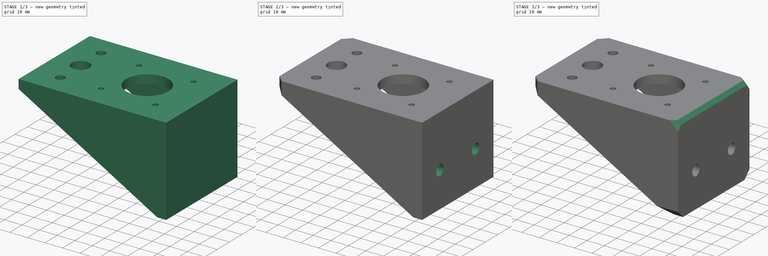
[diagram: build sequence overview — one tinted view per stage of 3, left to right]
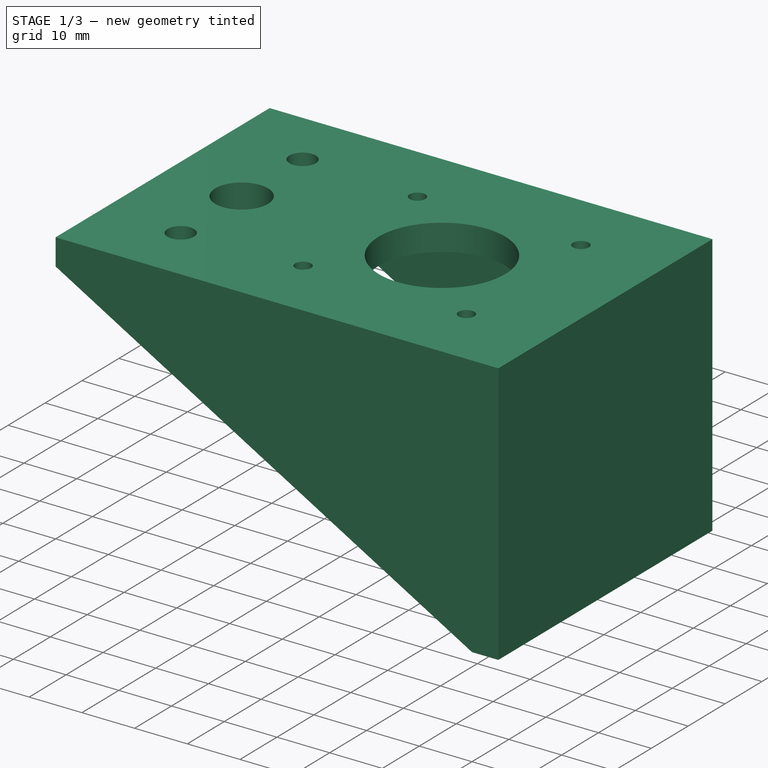
[diagram: stage 1 of 3 — iso view after this stage's code; geometry added in this stage tinted green]
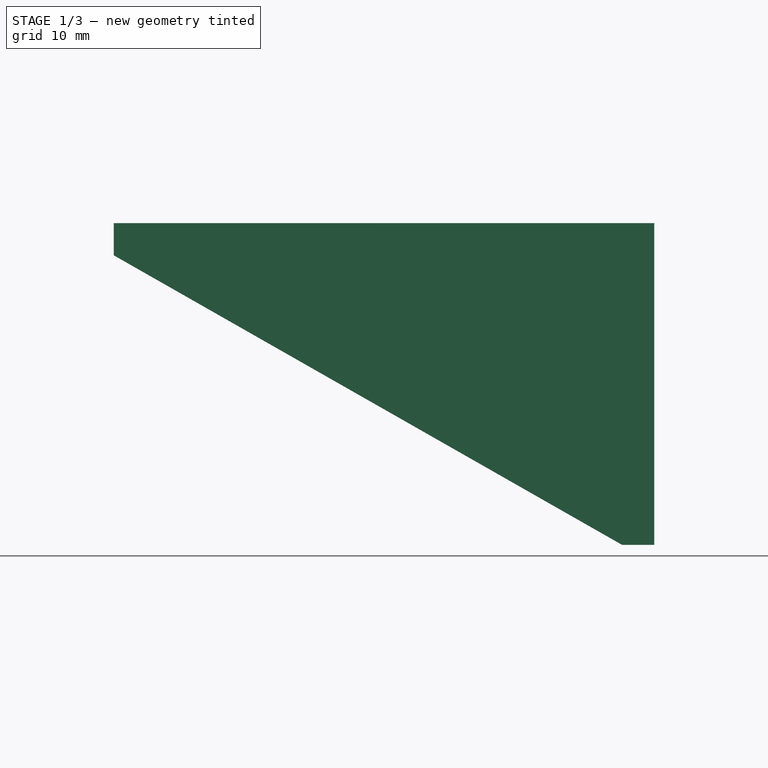
[diagram: stage 1 of 3 — front view after this stage's code; geometry added in this stage tinted green]
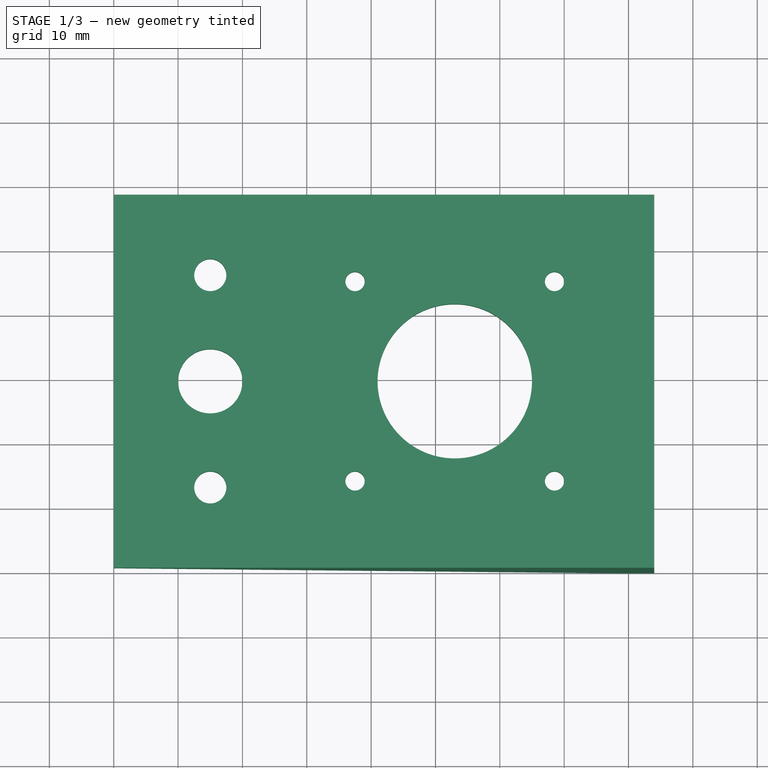
[diagram: stage 1 of 3 — top view after this stage's code; geometry added in this stage tinted green]
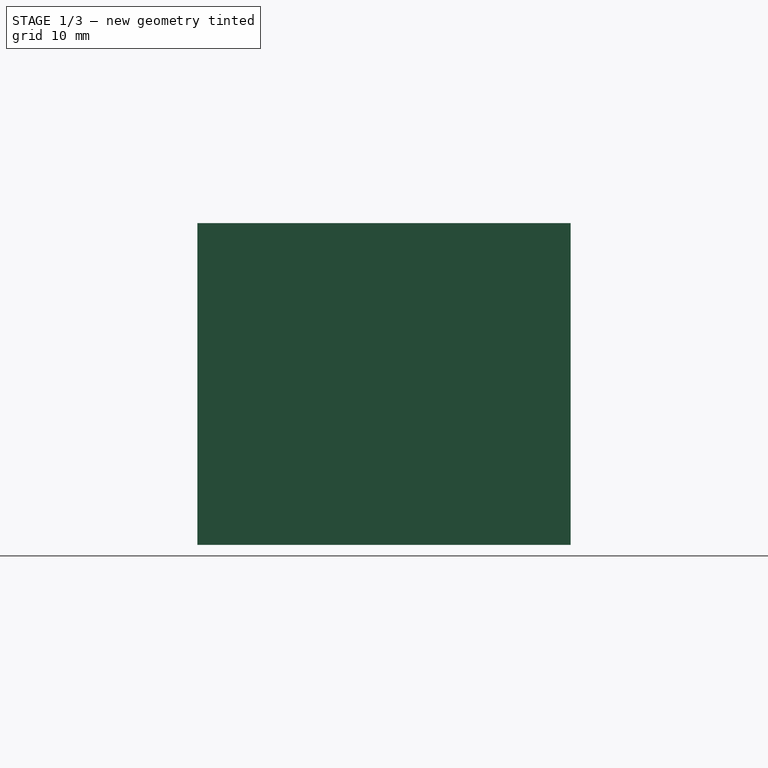
[diagram: stage 1 of 3 — right view after this stage's code; geometry added in this stage tinted green]
FCSTD DOCUMENT  (FreeCAD 0.18R14555 (Git shallow))
Label: bracket
License: All rights reserved
LicenseURL: http://en.wikipedia.org/wiki/All_rights_reserved
objects: Sketcher::SketchObject×4, PartDesign::Chamfer×4, PartDesign::Pocket×3, PartDesign::Pad×1, PartDesign::Body×1
note: 17 computed .brp shape members not serialized (recipe doc carries the construction recipe); baked Part::Feature solids carry a one-line shape summary decoded from their .brp

FEATURE [Sketcher::SketchObject] Sketch
  MapMode = 5
  Support = -> [XY_Plane]
  sketch-geometry (32):
    g0: LineSegment [constr] StartX=32 StartY=50 StartZ=0 EndX=74 EndY=50 EndZ=0
    g1: LineSegment [constr] StartX=74 StartY=50 StartZ=0 EndX=74 EndY=8 EndZ=0
    g2: LineSegment [constr] StartX=74 StartY=8 StartZ=0 EndX=32 EndY=8 EndZ=0
    g3: LineSegment [constr] StartX=32 StartY=8 StartZ=0 EndX=32 EndY=50 EndZ=0
    g4: LineSegment [constr] StartX=5 StartY=50.5 StartZ=0 EndX=25 EndY=50.5 EndZ=0
    g5: LineSegment [constr] StartX=25 StartY=50.5 StartZ=0 EndX=25 EndY=7.5 EndZ=0
    g6: LineSegment [constr] StartX=25 StartY=7.5 StartZ=0 EndX=5 EndY=7.5 EndZ=0
    g7: LineSegment [constr] StartX=5 StartY=7.5 StartZ=0 EndX=5 EndY=50.5 EndZ=0
    g8: LineSegment [constr] StartX=32 StartY=50 StartZ=0 EndX=74 EndY=8 EndZ=0
    g9: LineSegment [constr] StartX=32 StartY=8 StartZ=0 EndX=74 EndY=50 EndZ=0
    g10: LineSegment [constr] StartX=37.5 StartY=13.5 StartZ=0 EndX=37.5 EndY=44.5 EndZ=0
    g11: LineSegment [constr] StartX=37.5 StartY=44.5 StartZ=0 EndX=68.5 EndY=44.5 EndZ=0
    g12: LineSegment [constr] StartX=68.5 StartY=44.5 StartZ=0 EndX=68.5 EndY=13.5 EndZ=0
    g13: LineSegment [constr] StartX=68.5 StartY=13.5 StartZ=0 EndX=37.5 EndY=13.5 EndZ=0
    g14: Circle CenterX=37.5 CenterY=44.5 CenterZ=0 NormalX=0 NormalY=0 NormalZ=1 AngleXU=0 Radius=1.5
    g15: Circle CenterX=68.5 CenterY=44.5 CenterZ=0 NormalX=0 NormalY=0 NormalZ=1 AngleXU=0 Radius=1.5
    g16: Circle CenterX=68.5 CenterY=13.5 CenterZ=0 NormalX=0 NormalY=0 NormalZ=1 AngleXU=0 Radius=1.5
    g17: Circle CenterX=37.5 CenterY=13.5 CenterZ=0 NormalX=0 NormalY=0 NormalZ=1 AngleXU=0 Radius=1.5
    g18: Circle CenterX=53 CenterY=29 CenterZ=0 NormalX=0 NormalY=0 NormalZ=1 AngleXU=0 Radius=12
    g19: Circle CenterX=15 CenterY=45.5 CenterZ=0 NormalX=0 NormalY=0 NormalZ=1 AngleXU=0 Radius=2.5
    g20: Circle CenterX=15 CenterY=12.5 CenterZ=0 NormalX=0 NormalY=0 NormalZ=1 AngleXU=0 Radius=2.5
    g21: LineSegment [constr] StartX=5 StartY=7.5 StartZ=0 EndX=15 EndY=12.5 EndZ=0
    g22: LineSegment [constr] StartX=15 StartY=12.5 StartZ=0 EndX=25 EndY=7.5 EndZ=0
    g23: LineSegment [constr] StartX=15 StartY=45.5 StartZ=0 EndX=5 EndY=50.5 EndZ=0
    g24: LineSegment [constr] StartX=15 StartY=12.5 StartZ=0 EndX=15 EndY=29 EndZ=0
    g25: LineSegment [constr] StartX=15 StartY=29 StartZ=0 EndX=15 EndY=45.5 EndZ=0
    g26: Circle CenterX=15 CenterY=29 CenterZ=0 NormalX=0 NormalY=0 NormalZ=1 AngleXU=0 Radius=5
    g27: LineSegment [constr] StartX=15 StartY=29 StartZ=0 EndX=53 EndY=29 EndZ=0
    g28: LineSegment StartX=0 StartY=58 StartZ=0 EndX=84 EndY=58 EndZ=0
    g29: LineSegment StartX=84 StartY=58 StartZ=0 EndX=84 EndY=0 EndZ=0
    g30: LineSegment StartX=84 StartY=0 StartZ=0 EndX=0 EndY=0 EndZ=0
    g31: LineSegment StartX=0 StartY=0 StartZ=0 EndX=0 EndY=58 EndZ=0
  constraints (83):
    c: Coincident(g0,g1)
    c: Coincident(g1,g2)
    c: Coincident(g2,g3)
    c: Coincident(g3,g0)
    c: Horizontal(g0)
    c: Horizontal(g2)
    c: Vertical(g1)
    c: Vertical(g3)
    c: Coincident(g4,g5)
    c: Coincident(g5,g6)
    c: Coincident(g6,g7)
    c: Coincident(g7,g4)
    c: Horizontal(g4)
    c: Horizontal(g6)
    c: Vertical(g5)
    c: Vertical(g7)
    c: Equal(g3,g0)
    c: DistanceX(g0,g0) = 42
    c: Coincident(g8,g0)
    c: Coincident(g8,g1)
    c: Coincident(g9,g2)
    c: Coincident(g9,g0)
    c: PointOnObject(g10,g9)
    c: PointOnObject(g10,g8)
    c: Vertical(g10)
    c: Coincident(g11,g10)
    c: PointOnObject(g11,g9)
    c: Horizontal(g11)
    c: Coincident(g12,g11)
    c: PointOnObject(g12,g8)
    c: Vertical(g12)
    c: Coincident(g13,g12)
    c: Coincident(g13,g10)
    c: DistanceX(g11,g11) = 31
    c: Coincident(g14,g10)
    c: Coincident(g15,g11)
    c: Coincident(g16,g12)
    c: Coincident(g17,g10)
    c: Equal(g17,g14)
    c: Equal(g14,g15)
    c: Equal(g15,g16)
    c: Radius(g17) = 1.5
    c: PointOnObject(g18,g8)
    c: PointOnObject(g18,g9)
    c: Radius(g18) = 12
    c: Coincident(g21,g6)
    c: Coincident(g21,g20)
    c: Coincident(g22,g20)
    c: Coincident(g22,g5)
    c: Coincident(g23,g19)
    c: Coincident(g23,g4)
    c: Equal(g23,g21)
    c: Equal(g21,g22)
    c: Equal(g19,g20)
    c: Radius(g19) = 2.5
    c: DistanceY(g20,g19) = 33
    c: DistanceY(g6,g4) = 43
    c: DistanceX(g4,g4) = 20
    c: Coincident(g24,g20)
    c: Vertical(g24)
    c: Coincident(g25,g24)
    c: Coincident(g25,g19)
    c: Vertical(g25)
    c: Equal(g24,g25)
    c: Coincident(g26,g24)
    c: Radius(g26) = 5
    c: Coincident(g27,g26)
    c: Coincident(g27,g18)
    c: Horizontal(g27)
    c: DistanceX(g27,g27) = 38
    c: Coincident(g28,g29)
    c: Coincident(g29,g30)
    c: Coincident(g30,g31)
    c: Coincident(g31,g28)
    c: Horizontal(g28)
    c: Horizontal(g30)
    c: Vertical(g29)
    c: Vertical(g31)
    c: DistanceX(g18,g29) = 31
    c: DistanceY(g30,g6) = 7.5
    c: DistanceY(g4,g28) = 7.5
    c: DistanceX(g28,g4) = 5
    c: Coincident(g30,g-1)
FEATURE [PartDesign::Pad] Pad
  Length = 50
  Length2 = 100
  Profile = -> Sketch
  Type = 0
FEATURE [Sketcher::SketchObject] Sketch001
  ExternalGeometry = -> [Pad]
  MapMode = 5
  Placement = pos=(0,0,0) rot=(1,0,0;3.14159rad)
  Support = -> [Pad]
  sketch-geometry (6):
    g0: LineSegment StartX=0 StartY=-5 StartZ=0 EndX=79 EndY=-5 EndZ=0
    g1: LineSegment StartX=79 StartY=-5 StartZ=0 EndX=79 EndY=-53 EndZ=0
    g2: LineSegment StartX=79 StartY=-53 StartZ=0 EndX=0 EndY=-53 EndZ=0
    g3: LineSegment StartX=0 StartY=-53 StartZ=0 EndX=0 EndY=-5 EndZ=0
    g4: LineSegment [constr] StartX=84 StartY=-58 StartZ=0 EndX=79 EndY=-53 EndZ=0
    g5: LineSegment [constr] StartX=79 StartY=-5 StartZ=0 EndX=84 EndY=0 EndZ=0
  constraints (16):
    c: Coincident(g0,g1)
    c: Coincident(g1,g2)
    c: Coincident(g2,g3)
    c: Coincident(g3,g0)
    c: Horizontal(g0)
    c: Horizontal(g2)
    c: Vertical(g1)
    c: Vertical(g3)
    c: DistanceX(g1,g-3) = 5
    c: Coincident(g4,g-3)
    c: Coincident(g4,g1)
    c: Coincident(g5,g0)
    c: Coincident(g5,g-3)
    c: Equal(g4,g5)
    c: DistanceY(g0,g5) = 5
    c: PointOnObject(g0,g-4)
FEATURE [PartDesign::Pocket] Pocket
  BaseFeature = -> Pad
  Length = 45
  Length2 = 100
  Profile = -> Sketch001
  Type = 0
FEATURE [Sketcher::SketchObject] Sketch002
  ExternalGeometry = -> [Pocket]
  MapMode = 5
  Placement = pos=(0,0,0) rot=(1,0,0;1.5708rad)
  Support = -> [Pocket]
  sketch-geometry (3):
    g0: LineSegment StartX=0 StartY=45 StartZ=0 EndX=0 EndY=0 EndZ=0
    g1: LineSegment StartX=0 StartY=0 StartZ=0 EndX=79 EndY=1.18e-14 EndZ=0
    g2: LineSegment StartX=79 StartY=1.18e-14 StartZ=0 EndX=0 EndY=45 EndZ=0
  constraints (6):
    c: Coincident(g0,g1)
    c: Coincident(g1,g2)
    c: Coincident(g2,g0)
    c: Coincident(g0,g-3)
    c: Coincident(g0,g-1)
    c: Coincident(g1,g-4)
FEATURE [PartDesign::Pocket] Pocket001
  BaseFeature = -> Pocket
  Length = 5
  Length2 = 100
  Profile = -> Sketch002
  Type = 1
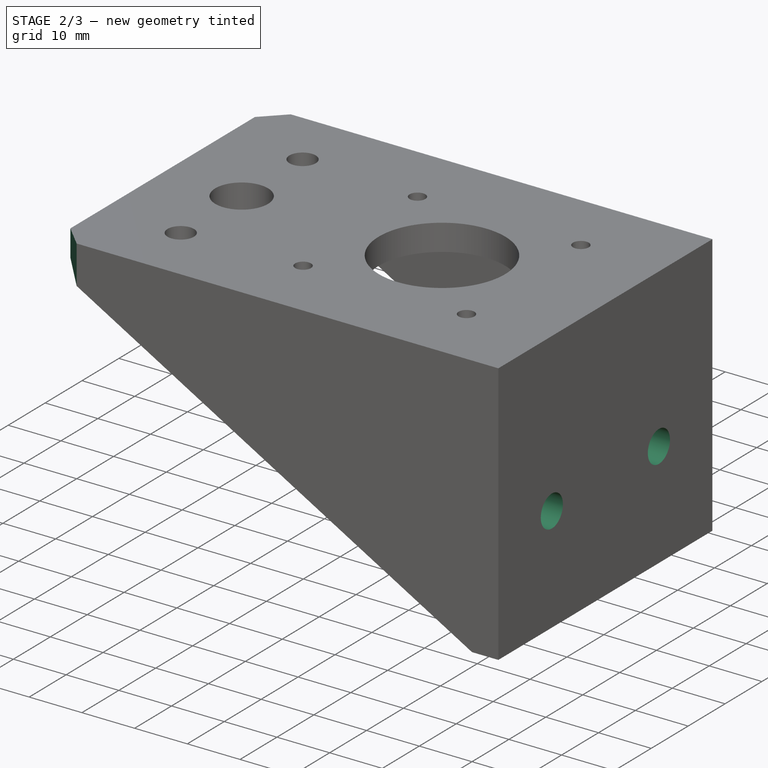
[diagram: stage 2 of 3 — iso view after this stage's code; geometry added in this stage tinted green]
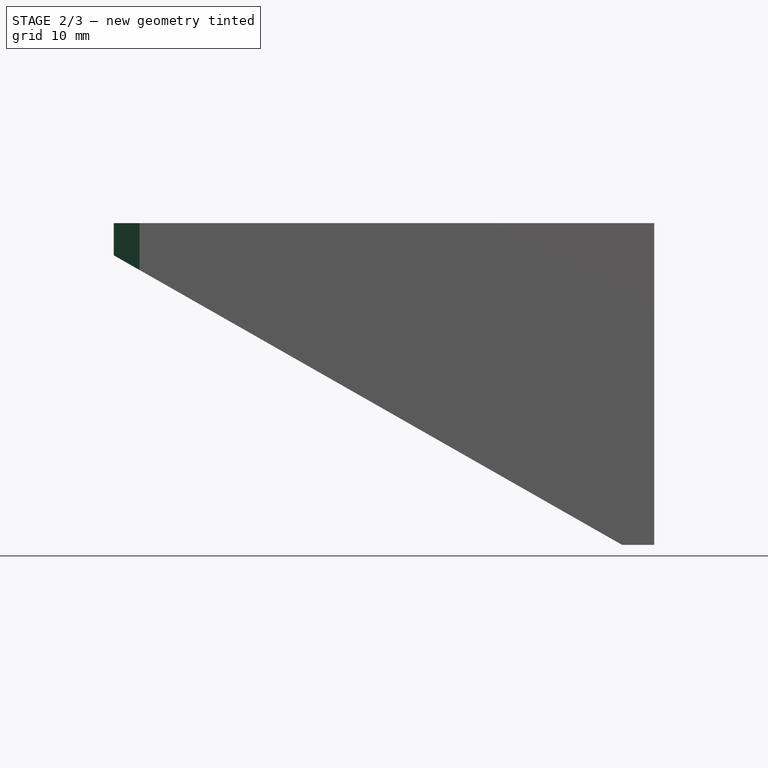
[diagram: stage 2 of 3 — front view after this stage's code; geometry added in this stage tinted green]
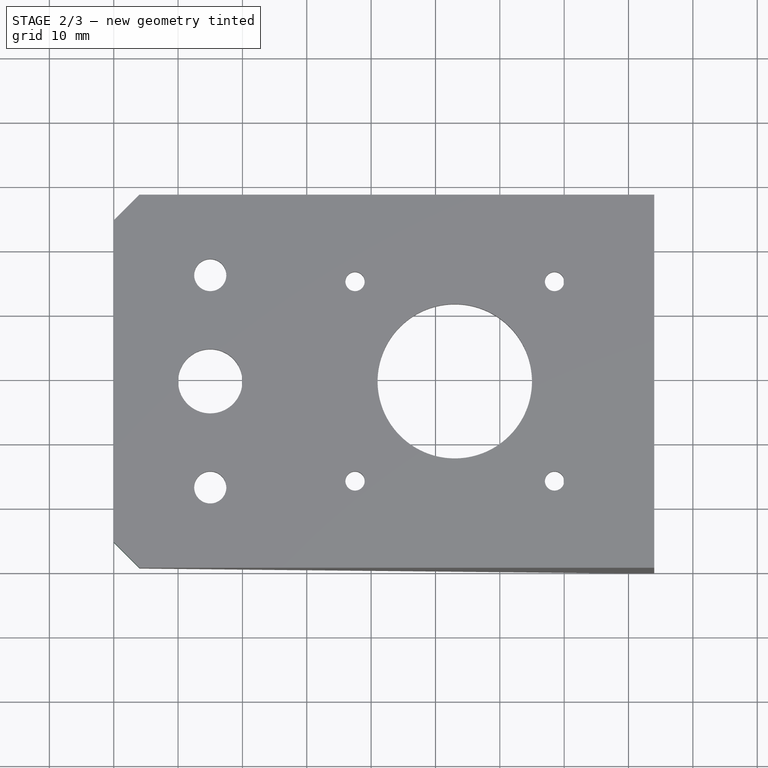
[diagram: stage 2 of 3 — top view after this stage's code; geometry added in this stage tinted green]
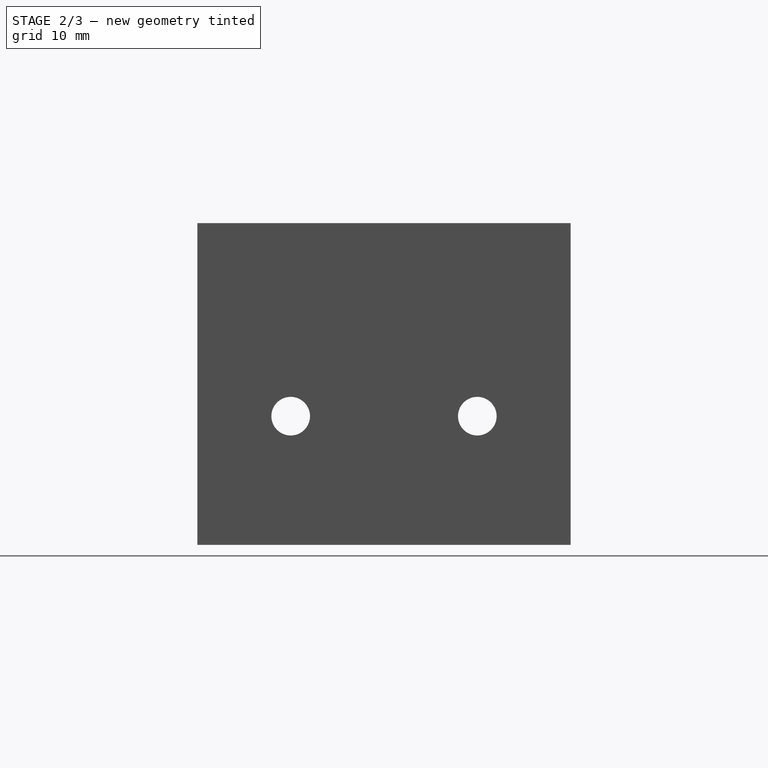
[diagram: stage 2 of 3 — right view after this stage's code; geometry added in this stage tinted green]
FEATURE [Sketcher::SketchObject] Sketch003
  ExternalGeometry = -> [Pocket001]
  MapMode = 5
  Placement = pos=(84,0,0) rot=(0.57735,0.57735,0.57735;2.0944rad)
  Support = -> [Pocket001]
  sketch-geometry (6):
    g0: Circle CenterX=14.5 CenterY=20 CenterZ=0 NormalX=0 NormalY=0 NormalZ=1 AngleXU=0 Radius=3
    g1: Circle CenterX=43.5 CenterY=20 CenterZ=0 NormalX=0 NormalY=0 NormalZ=1 AngleXU=0 Radius=3
    g2: LineSegment [constr] StartX=58 StartY=0 StartZ=0 EndX=43.5 EndY=20 EndZ=0
    g3: LineSegment [constr] StartX=43.5 StartY=20 StartZ=0 EndX=14.5 EndY=20 EndZ=0
    g4: LineSegment [constr] StartX=14.5 StartY=20 StartZ=0 EndX=0 EndY=0 EndZ=0
    g5: Circle [constr] CenterX=14.5 CenterY=20 CenterZ=0 NormalX=0 NormalY=0 NormalZ=1 AngleXU=0 Radius=6.5
  constraints (14):
    c: Coincident(g2,g-4)
    c: Coincident(g2,g1)
    c: Coincident(g3,g1)
    c: Coincident(g3,g0)
    c: Horizontal(g3)
    c: Coincident(g4,g0)
    c: Coincident(g4,g-1)
    c: Equal(g4,g2)
    c: Equal(g0,g1)
    c: Radius(g0) = 3
    c: Coincident(g5,g0)
    c: Radius(g5) = 6.5
    c: DistanceY(g0) = 20
    c: DistanceX(g-5,g0) = 9.5
FEATURE [PartDesign::Pocket] Pocket002
  BaseFeature = -> Pocket001
  Length = 5
  Length2 = 100
  Profile = -> Sketch003
  Type = 1
FEATURE [PartDesign::Chamfer] Chamfer
  Base = -> Pocket002 [Edge5,Edge29]
  BaseFeature = -> Pocket002
  Size = 4
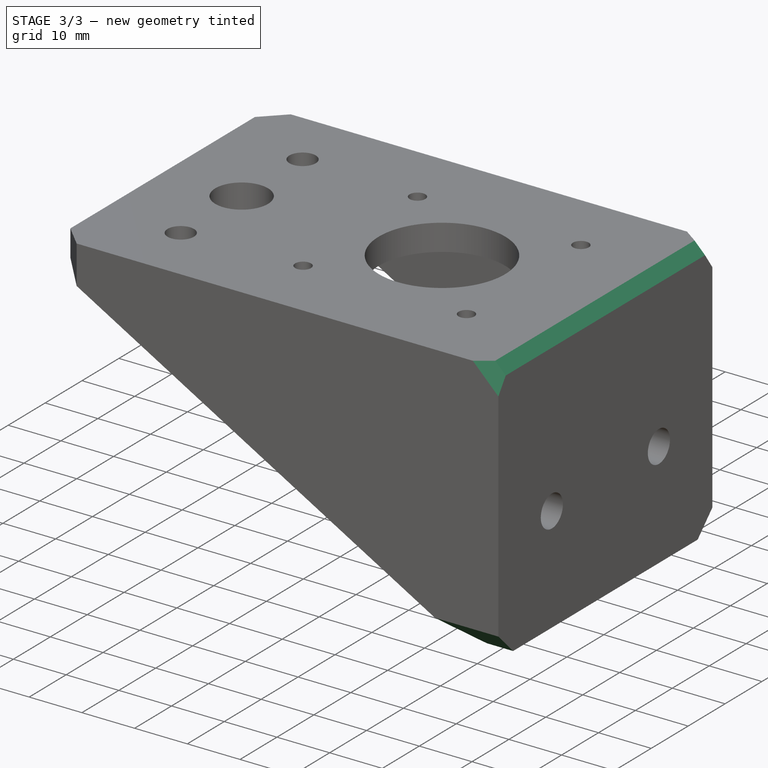
[diagram: stage 3 of 3 — iso view after this stage's code; geometry added in this stage tinted green]
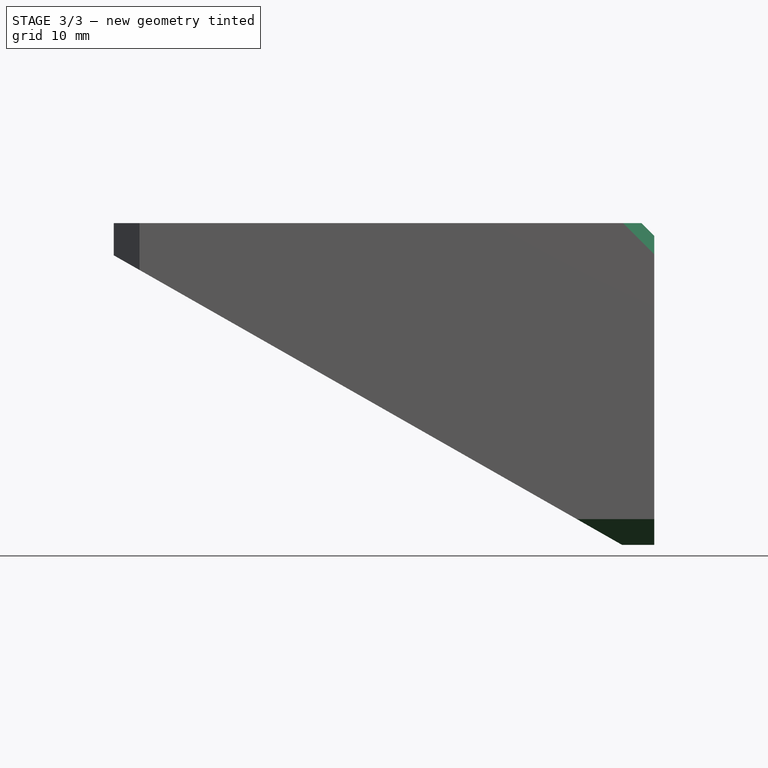
[diagram: stage 3 of 3 — front view after this stage's code; geometry added in this stage tinted green]
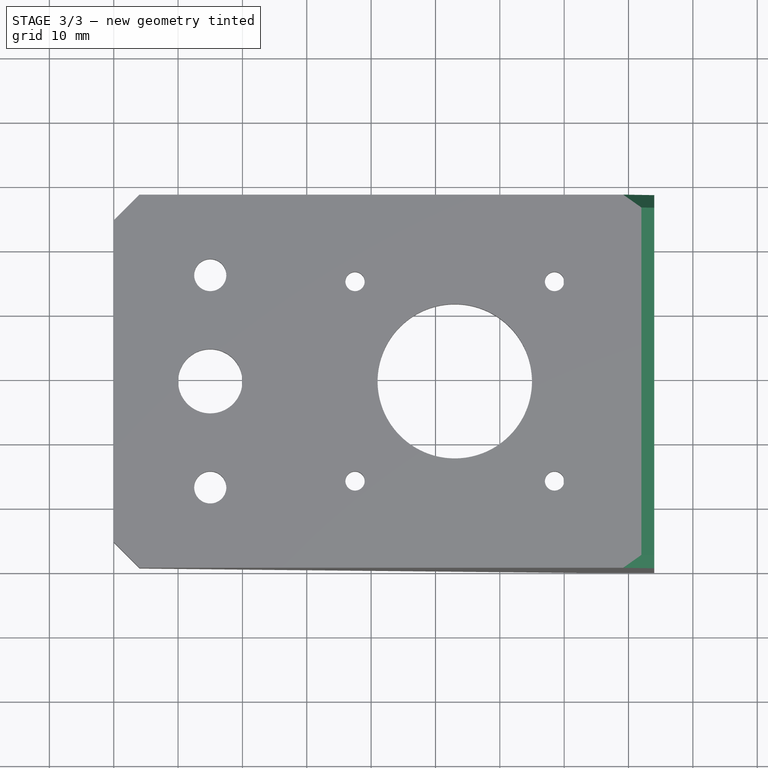
[diagram: stage 3 of 3 — top view after this stage's code; geometry added in this stage tinted green]
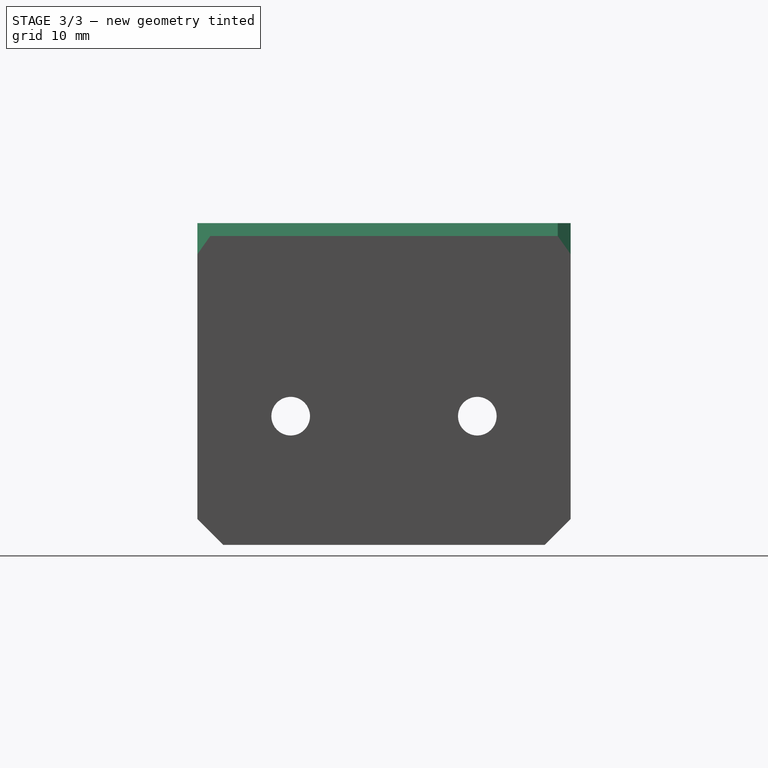
[diagram: stage 3 of 3 — right view after this stage's code; geometry added in this stage tinted green]
FEATURE [PartDesign::Chamfer] Chamfer001
  Base = -> Chamfer [Edge14,Edge3]
  BaseFeature = -> Chamfer
  Size = 4
FEATURE [PartDesign::Chamfer] Chamfer002
  Base = -> Chamfer001 [Edge15]
  BaseFeature = -> Chamfer001
  Size = 2
FEATURE [PartDesign::Chamfer] Chamfer003
  Base = -> Chamfer002 [Edge15,Edge2]
  BaseFeature = -> Chamfer002
  Size = 2
FEATURE [PartDesign::Body] Body
  Group = -> [Sketch,Pad,Sketch001,Pocket,Sketch002,Pocket001,Sketch003,Pocket002,Chamfer,Chamfer001,Chamfer002,Chamfer003]
  Origin = -> Origin
  Tip = -> Chamfer003
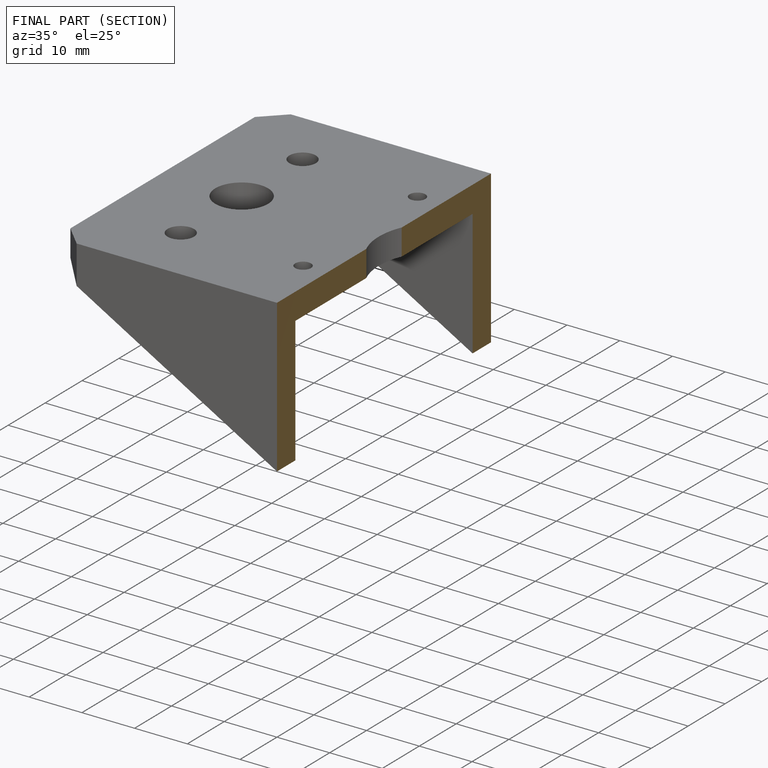
[diagram: finished part — half-section view (interior)]
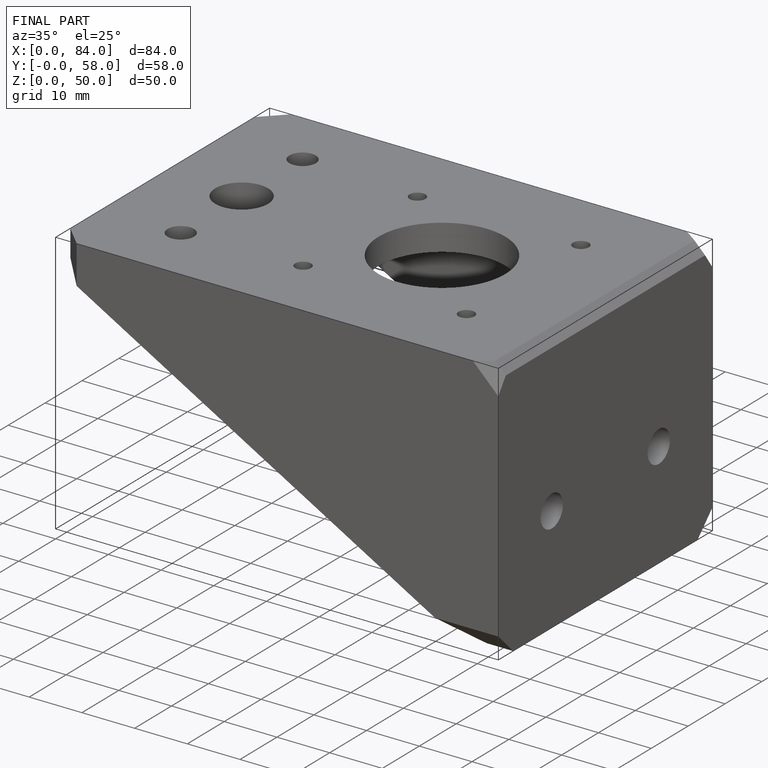
[diagram: finished part — iso view with bounding-box wireframe]
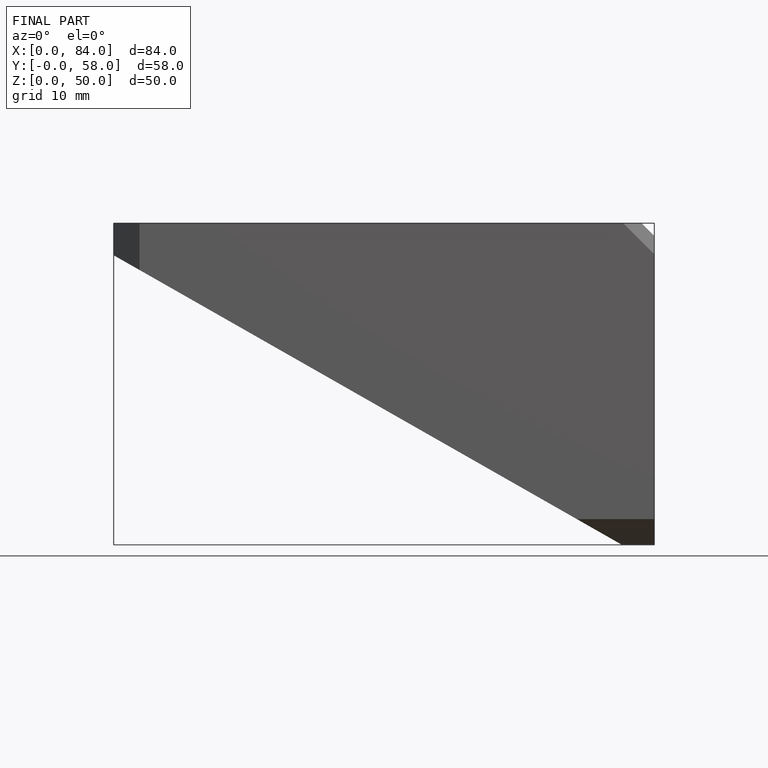
[diagram: finished part — front view with bounding-box wireframe]
